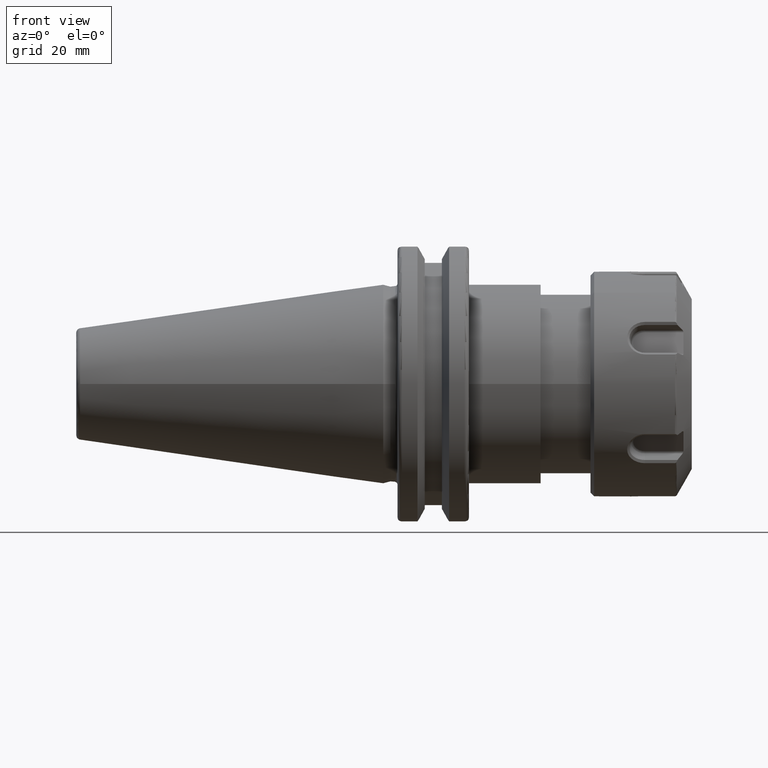
[diagram: clean part render]
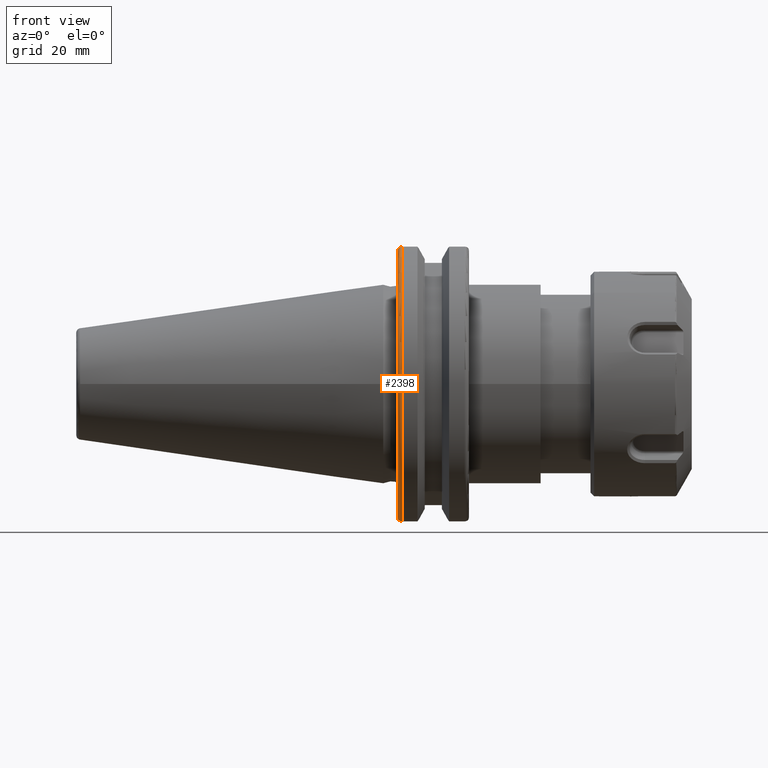
[diagram: same view with one face highlighted and labeled with its STEP entity id]
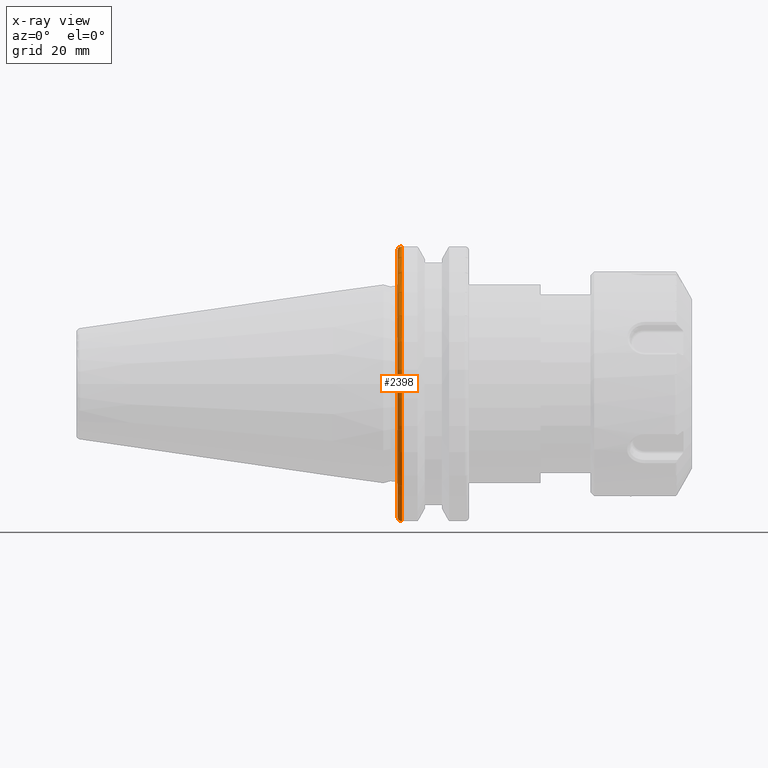
[diagram: x-ray of the same camera — body ghosted, the highlighted face saturated]
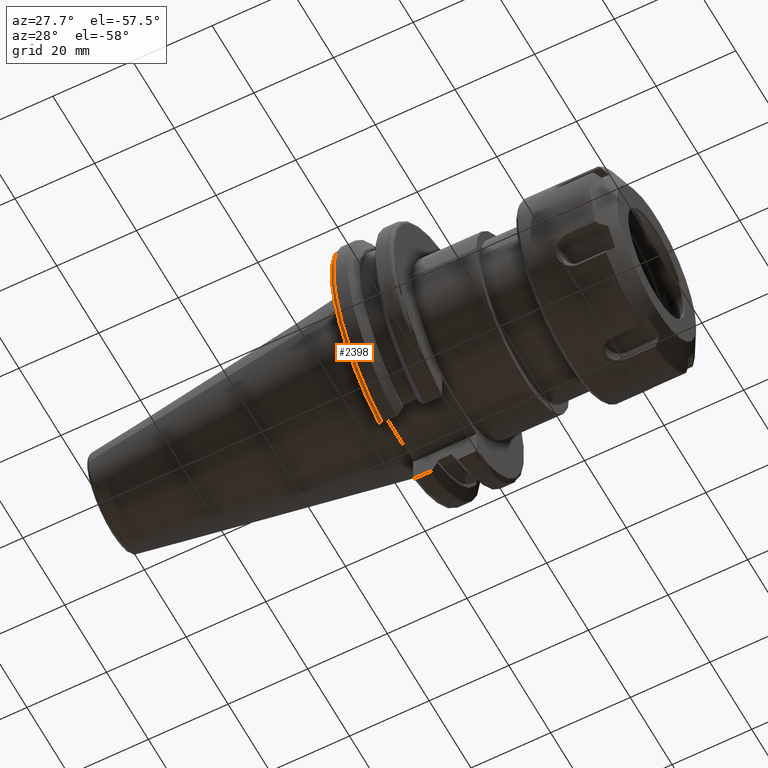
[diagram: same view with one face highlighted and labeled with its STEP entity id]
A machine part, front view. The second image highlights one B-rep face of the part: STEP entity #2398.
The next image is the same camera in x-ray: the body ghosted, the highlighted face saturated — about 0% of this face is hidden behind the body in this view.
A second angle (auxiliary view) of the same face is appended — the face is thin or edge-on in the first view.
In plain terms, the highlighted toroidal blend (fillet) surface has major radius 30.75 mm and minor (blend) radius 1 mm.
Its self-contained STEP definition (entity closure, byte-faithful):
#148=B_SPLINE_CURVE_WITH_KNOTS('',3,(#3697,#3698,#3699,#3700,#3701,#3702),
 .UNSPECIFIED.,.F.,.F.,(4,2,4),(0.0977210450333167,0.111963554372601,0.150804064902975),
 .UNSPECIFIED.);
#149=B_SPLINE_CURVE_WITH_KNOTS('',3,(#3739,#3740,#3741,#3742,#3743,#3744),
 .UNSPECIFIED.,.F.,.F.,(4,2,4),(0.452741154494498,0.491581665024872,0.505824174364157),
 .UNSPECIFIED.);
#150=B_SPLINE_CURVE_WITH_KNOTS('',3,(#3748,#3749,#3750,#3751,#3752,#3753,
#3754,#3755),.UNSPECIFIED.,.F.,.F.,(4,2,2,4),(-0.104180282751877,-0.0729784742461442,
-0.0343524753874977,0.),.UNSPECIFIED.);
#151=B_SPLINE_CURVE_WITH_KNOTS('',3,(#3758,#3759,#3760,#3761,#3762,#3763,
#3764,#3765),.UNSPECIFIED.,.F.,.F.,(4,2,2,4),(0.,0.0343524753874981,0.0729784742461436,
0.104180282751876),.UNSPECIFIED.);
#218=TOROIDAL_SURFACE('',#2639,30.75,1.);
#365=FACE_OUTER_BOUND('',#513,.T.);
#513=EDGE_LOOP('',(#1767,#1768,#1769,#1770,#1771,#1772));
#969=CIRCLE('',#2624,30.75);
#976=CIRCLE('',#2640,31.75);
#1073=VERTEX_POINT('',#3541);
#1074=VERTEX_POINT('',#3542);
#1114=VERTEX_POINT('',#3696);
#1127=VERTEX_POINT('',#3737);
#1128=VERTEX_POINT('',#3747);
#1129=VERTEX_POINT('',#3756);
#1309=EDGE_CURVE('',#1073,#1074,#969,.T.);
#1357=EDGE_CURVE('',#1114,#1073,#148,.T.);
#1372=EDGE_CURVE('',#1074,#1127,#149,.T.);
#1374=EDGE_CURVE('',#1127,#1128,#150,.T.);
#1375=EDGE_CURVE('',#1128,#1129,#976,.T.);
#1376=EDGE_CURVE('',#1129,#1114,#151,.T.);
#1767=ORIENTED_EDGE('',*,*,#1374,.T.);
#1768=ORIENTED_EDGE('',*,*,#1375,.T.);
#1769=ORIENTED_EDGE('',*,*,#1376,.T.);
#1770=ORIENTED_EDGE('',*,*,#1357,.T.);
#1771=ORIENTED_EDGE('',*,*,#1309,.T.);
#1772=ORIENTED_EDGE('',*,*,#1372,.T.);
#2398=ADVANCED_FACE('',(#365),#218,.T.);
#2624=AXIS2_PLACEMENT_3D('',#3543,#2908,#2909);
#2639=AXIS2_PLACEMENT_3D('',#3746,#2978,#2979);
#2640=AXIS2_PLACEMENT_3D('',#3757,#2980,#2981);
#2908=DIRECTION('center_axis',(1.,0.,0.));
#2909=DIRECTION('ref_axis',(0.,-1.,1.60812264967664E-16));
#2978=DIRECTION('center_axis',(1.,0.,0.));
#2979=DIRECTION('ref_axis',(0.,0.,-1.));
#2980=DIRECTION('center_axis',(-1.,0.,0.));
#2981=DIRECTION('ref_axis',(0.,-1.,1.60812264967664E-16));
#3541=CARTESIAN_POINT('',(3.175,-8.18999999999999,29.6392712461019));
#3542=CARTESIAN_POINT('',(3.175,-8.19,-29.6392712461019));
#3543=CARTESIAN_POINT('Origin',(3.175,0.,0.));
#3696=CARTESIAN_POINT('',(3.31912772509028,-8.19,30.1755016258903));
#3697=CARTESIAN_POINT('Ctrl Pts',(3.31912772509028,-8.19,30.1755016258903));
#3698=CARTESIAN_POINT('Ctrl Pts',(3.29318362718666,-8.19,30.131014531546));
#3699=CARTESIAN_POINT('Ctrl Pts',(3.27103565282437,-8.19,30.0852355256475));
#3700=CARTESIAN_POINT('Ctrl Pts',(3.20451443291695,-8.19,29.9212724384851));
#3701=CARTESIAN_POINT('Ctrl Pts',(3.175,-8.19,29.7687396145364));
#3702=CARTESIAN_POINT('Ctrl Pts',(3.175,-8.19,29.6392712461019));
#3737=CARTESIAN_POINT('',(3.31912772509028,-8.19,-30.1755016258903));
#3739=CARTESIAN_POINT('Ctrl Pts',(3.175,-8.19,-29.6392712461018));
#3740=CARTESIAN_POINT('Ctrl Pts',(3.175,-8.19,-29.7687396145364));
#3741=CARTESIAN_POINT('Ctrl Pts',(3.20451443291695,-8.19,-29.9212724384851));
#3742=CARTESIAN_POINT('Ctrl Pts',(3.27103565282437,-8.19,-30.0852355256475));
#3743=CARTESIAN_POINT('Ctrl Pts',(3.29318362718666,-8.19,-30.131014531546));
#3744=CARTESIAN_POINT('Ctrl Pts',(3.31912772509028,-8.19,-30.1755016258903));
#3746=CARTESIAN_POINT('Origin',(4.175,0.,0.));
#3747=CARTESIAN_POINT('',(4.175,-8.67204822802685,-30.5427254764662));
#3748=CARTESIAN_POINT('Ctrl Pts',(3.31912772509028,-8.19,-30.1755016258903));
#3749=CARTESIAN_POINT('Ctrl Pts',(3.36755369570113,-8.27036828330781,-30.2367261024977));
#3750=CARTESIAN_POINT('Ctrl Pts',(3.43232973376814,-8.34909446036477,-30.2966996242308));
#3751=CARTESIAN_POINT('Ctrl Pts',(3.58532758094931,-8.48862804755884,-30.4029961692546));
#3752=CARTESIAN_POINT('Ctrl Pts',(3.70655857052286,-8.56482138642532,-30.4610401774263));
#3753=CARTESIAN_POINT('Ctrl Pts',(3.92668295662254,-8.6471881193939,-30.5237870709558));
#3754=CARTESIAN_POINT('Ctrl Pts',(4.06049174870834,-8.67204822802686,-30.5427254764662));
#3755=CARTESIAN_POINT('Ctrl Pts',(4.175,-8.67204822802686,-30.5427254764662));
#3756=CARTESIAN_POINT('',(4.175,-8.67204822802685,30.5427254764662));
#3757=CARTESIAN_POINT('Origin',(4.175,0.,0.));
#3758=CARTESIAN_POINT('Ctrl Pts',(4.175,-8.67204822802686,30.5427254764662));
#3759=CARTESIAN_POINT('Ctrl Pts',(4.06049174870834,-8.67204822802686,30.5427254764662));
#3760=CARTESIAN_POINT('Ctrl Pts',(3.92668295662254,-8.64718811939389,30.5237870709558));
#3761=CARTESIAN_POINT('Ctrl Pts',(3.70655857052286,-8.56482138642532,30.4610401774263));
#3762=CARTESIAN_POINT('Ctrl Pts',(3.58532758094931,-8.48862804755884,30.4029961692546));
#3763=CARTESIAN_POINT('Ctrl Pts',(3.43232973376814,-8.34909446036478,30.2966996242308));
#3764=CARTESIAN_POINT('Ctrl Pts',(3.36755369570113,-8.2703682833078,30.2367261024977));
#3765=CARTESIAN_POINT('Ctrl Pts',(3.31912772509028,-8.19,30.1755016258903));